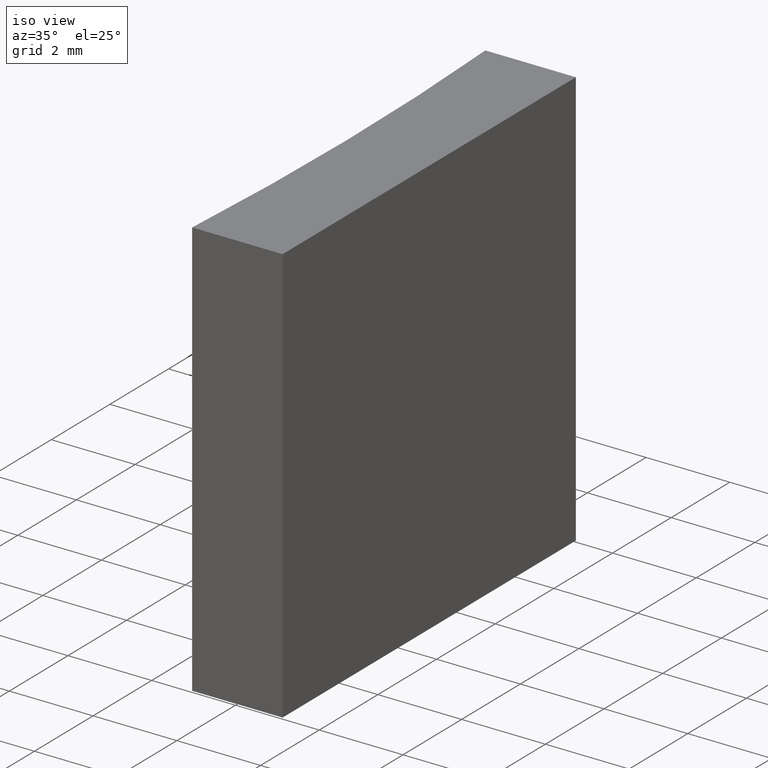
[diagram: clean part render]
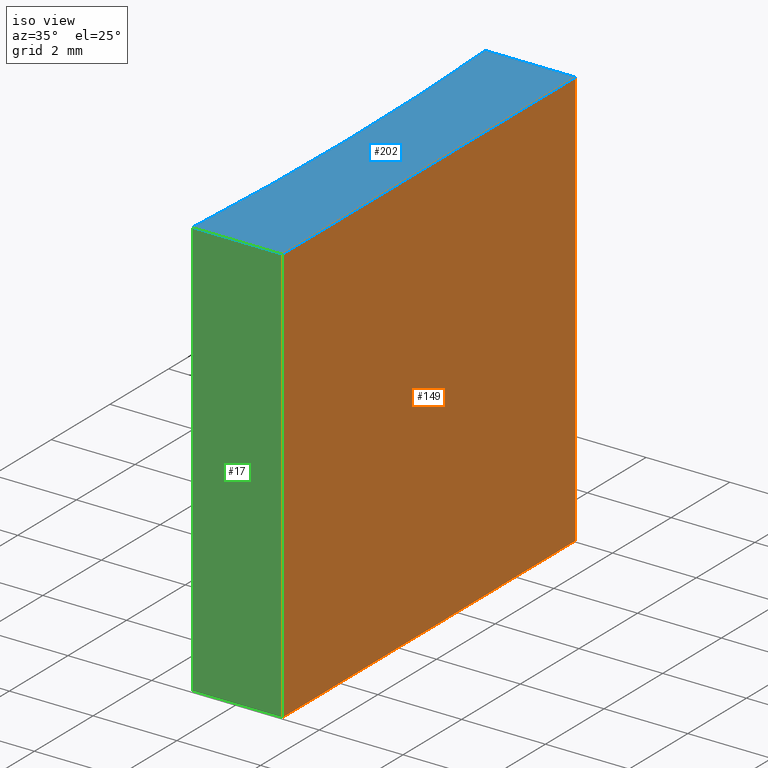
[diagram: same view with three faces highlighted in distinct colors, each labeled with its STEP entity id]
A machine part, iso view with three faces highlighted in distinct colors.
Their STEP definitions:

[orange] entity #149 — the highlighted planar face has unit normal (-1, -0, 0).
#2 = LINE ( 'NONE', #77, #76 ) ;
#6 = CARTESIAN_POINT ( 'NONE',  ( -14.65205432023611998, 23.68283811033197850, 10.00000000000000000 ) ) ;
#7 = DIRECTION ( 'NONE',  ( 1.734723475976806108E-16, -1.000000000000000000, 0.000000000000000000 ) ) ;
#18 = EDGE_LOOP ( 'NONE', ( #91, #205, #227, #172 ) ) ;
#27 = CARTESIAN_POINT ( 'NONE',  ( -14.65205432023611998, 23.68283811033197850, 0.000000000000000000 ) ) ;
#42 = EDGE_CURVE ( 'NONE', #100, #156, #74, .T. ) ;
#43 = DIRECTION ( 'NONE',  ( -0.000000000000000000, -0.000000000000000000, -1.000000000000000000 ) ) ;
#44 = VECTOR ( 'NONE', #137, 1000.000000000000000 ) ;
#55 = VERTEX_POINT ( 'NONE', #175 ) ;
#74 = LINE ( 'NONE', #153, #44 ) ;
#76 = VECTOR ( 'NONE', #138, 1000.000000000000000 ) ;
#77 = CARTESIAN_POINT ( 'NONE',  ( -14.65205432023611998, 23.68283811033197850, 10.00000000000000000 ) ) ;
#84 = EDGE_CURVE ( 'NONE', #112, #55, #2, .T. ) ;
#91 = ORIENTED_EDGE ( 'NONE', *, *, #42, .T. ) ;
#100 = VERTEX_POINT ( 'NONE', #140 ) ;
#112 = VERTEX_POINT ( 'NONE', #210 ) ;
#115 = VECTOR ( 'NONE', #125, 1000.000000000000000 ) ;
#123 = LINE ( 'NONE', #230, #115 ) ;
#125 = DIRECTION ( 'NONE',  ( -0.000000000000000000, -0.000000000000000000, -1.000000000000000000 ) ) ;
#137 = DIRECTION ( 'NONE',  ( -1.734723475976806108E-16, 1.000000000000000000, -0.000000000000000000 ) ) ;
#138 = DIRECTION ( 'NONE',  ( -1.734723475976806108E-16, 1.000000000000000000, -0.000000000000000000 ) ) ;
#140 = CARTESIAN_POINT ( 'NONE',  ( -14.65205432023611820, 13.68283811033197139, 0.000000000000000000 ) ) ;
#149 = ADVANCED_FACE ( 'NONE', ( #180 ), #162, .F. ) ;
#153 = CARTESIAN_POINT ( 'NONE',  ( -14.65205432023611998, 23.68283811033197850, 0.000000000000000000 ) ) ;
#156 = VERTEX_POINT ( 'NONE', #27 ) ;
#162 = PLANE ( 'NONE',  #195 ) ;
#172 = ORIENTED_EDGE ( 'NONE', *, *, #203, .T. ) ;
#174 = EDGE_CURVE ( 'NONE', #55, #156, #215, .T. ) ;
#175 = CARTESIAN_POINT ( 'NONE',  ( -14.65205432023611998, 23.68283811033197850, 10.00000000000000000 ) ) ;
#177 = CARTESIAN_POINT ( 'NONE',  ( -14.65205432023611998, 23.68283811033197850, 10.00000000000000000 ) ) ;
#180 = FACE_OUTER_BOUND ( 'NONE', #18, .T. ) ;
#188 = VECTOR ( 'NONE', #43, 1000.000000000000000 ) ;
#193 = DIRECTION ( 'NONE',  ( -1.000000000000000000, -1.734723475976806108E-16, 0.000000000000000000 ) ) ;
#195 = AXIS2_PLACEMENT_3D ( 'NONE', #6, #193, #7 ) ;
#203 = EDGE_CURVE ( 'NONE', #112, #100, #123, .T. ) ;
#205 = ORIENTED_EDGE ( 'NONE', *, *, #174, .F. ) ;
#210 = CARTESIAN_POINT ( 'NONE',  ( -14.65205432023611820, 13.68283811033197139, 10.00000000000000000 ) ) ;
#215 = LINE ( 'NONE', #177, #188 ) ;
#227 = ORIENTED_EDGE ( 'NONE', *, *, #84, .F. ) ;
#230 = CARTESIAN_POINT ( 'NONE',  ( -14.65205432023611820, 13.68283811033197139, 10.00000000000000000 ) ) ;

[blue] entity #202 — the highlighted planar face has unit normal (0, 0, 1).
#2 = LINE ( 'NONE', #77, #76 ) ;
#3 = EDGE_LOOP ( 'NONE', ( #52, #39, #119, #96 ) ) ;
#23 = FACE_OUTER_BOUND ( 'NONE', #3, .T. ) ;
#24 = CARTESIAN_POINT ( 'NONE',  ( -16.81205432023612190, 23.68283811033197850, 10.00000000000000000 ) ) ;
#25 = VECTOR ( 'NONE', #176, 1000.000000000000000 ) ;
#29 = CARTESIAN_POINT ( 'NONE',  ( -16.81205432023611479, 13.68283811033197139, 10.00000000000000000 ) ) ;
#39 = ORIENTED_EDGE ( 'NONE', *, *, #196, .T. ) ;
#41 = DIRECTION ( 'NONE',  ( -0.000000000000000000, -0.000000000000000000, -1.000000000000000000 ) ) ;
#49 = CIRCLE ( 'NONE', #122, 77.54999999999999716 ) ;
#52 = ORIENTED_EDGE ( 'NONE', *, *, #154, .T. ) ;
#55 = VERTEX_POINT ( 'NONE', #175 ) ;
#59 = CARTESIAN_POINT ( 'NONE',  ( -94.20070012826145955, 18.68283811033194297, 10.00000000000000000 ) ) ;
#61 = LINE ( 'NONE', #192, #219 ) ;
#76 = VECTOR ( 'NONE', #138, 1000.000000000000000 ) ;
#77 = CARTESIAN_POINT ( 'NONE',  ( -14.65205432023611998, 23.68283811033197850, 10.00000000000000000 ) ) ;
#82 = AXIS2_PLACEMENT_3D ( 'NONE', #164, #191, #87 ) ;
#84 = EDGE_CURVE ( 'NONE', #112, #55, #2, .T. ) ;
#86 = PLANE ( 'NONE',  #82 ) ;
#87 = DIRECTION ( 'NONE',  ( 1.000000000000000000, 0.000000000000000000, -0.000000000000000000 ) ) ;
#96 = ORIENTED_EDGE ( 'NONE', *, *, #109, .T. ) ;
#101 = DIRECTION ( 'NONE',  ( 1.000000000000000000, 0.000000000000000000, 0.000000000000000000 ) ) ;
#102 = LINE ( 'NONE', #24, #25 ) ;
#109 = EDGE_CURVE ( 'NONE', #55, #148, #102, .T. ) ;
#112 = VERTEX_POINT ( 'NONE', #210 ) ;
#119 = ORIENTED_EDGE ( 'NONE', *, *, #84, .T. ) ;
#122 = AXIS2_PLACEMENT_3D ( 'NONE', #59, #41, #229 ) ;
#138 = DIRECTION ( 'NONE',  ( -1.734723475976806108E-16, 1.000000000000000000, -0.000000000000000000 ) ) ;
#148 = VERTEX_POINT ( 'NONE', #163 ) ;
#154 = EDGE_CURVE ( 'NONE', #148, #173, #49, .T. ) ;
#163 = CARTESIAN_POINT ( 'NONE',  ( -16.81205432023612190, 23.68283811033197850, 10.00000000000000000 ) ) ;
#164 = CARTESIAN_POINT ( 'NONE',  ( -94.20070012826145955, 18.68283811033194297, 10.00000000000000000 ) ) ;
#173 = VERTEX_POINT ( 'NONE', #29 ) ;
#175 = CARTESIAN_POINT ( 'NONE',  ( -14.65205432023611998, 23.68283811033197850, 10.00000000000000000 ) ) ;
#176 = DIRECTION ( 'NONE',  ( -1.000000000000000000, -0.000000000000000000, -0.000000000000000000 ) ) ;
#191 = DIRECTION ( 'NONE',  ( 0.000000000000000000, 0.000000000000000000, 1.000000000000000000 ) ) ;
#192 = CARTESIAN_POINT ( 'NONE',  ( -16.81205432023611479, 13.68283811033197139, 10.00000000000000000 ) ) ;
#196 = EDGE_CURVE ( 'NONE', #173, #112, #61, .T. ) ;
#202 = ADVANCED_FACE ( 'NONE', ( #23 ), #86, .T. ) ;
#210 = CARTESIAN_POINT ( 'NONE',  ( -14.65205432023611820, 13.68283811033197139, 10.00000000000000000 ) ) ;
#219 = VECTOR ( 'NONE', #101, 1000.000000000000000 ) ;
#229 = DIRECTION ( 'NONE',  ( 1.000000000000000000, 0.000000000000000000, 0.000000000000000000 ) ) ;

[green] entity #17 — the highlighted planar face has unit normal (0, 1, 0).
#1 = DIRECTION ( 'NONE',  ( 0.000000000000000000, 1.000000000000000000, 0.000000000000000000 ) ) ;
#12 = ORIENTED_EDGE ( 'NONE', *, *, #209, .T. ) ;
#14 = AXIS2_PLACEMENT_3D ( 'NONE', #132, #1, #206 ) ;
#17 = ADVANCED_FACE ( 'NONE', ( #190 ), #72, .F. ) ;
#21 = ORIENTED_EDGE ( 'NONE', *, *, #28, .T. ) ;
#28 = EDGE_CURVE ( 'NONE', #173, #170, #228, .T. ) ;
#29 = CARTESIAN_POINT ( 'NONE',  ( -16.81205432023611479, 13.68283811033197139, 10.00000000000000000 ) ) ;
#35 = ORIENTED_EDGE ( 'NONE', *, *, #196, .F. ) ;
#56 = DIRECTION ( 'NONE',  ( -0.000000000000000000, -0.000000000000000000, -1.000000000000000000 ) ) ;
#61 = LINE ( 'NONE', #192, #219 ) ;
#63 = CARTESIAN_POINT ( 'NONE',  ( -16.81205432023611479, 13.68283811033197139, 0.000000000000000000 ) ) ;
#72 = PLANE ( 'NONE',  #14 ) ;
#85 = DIRECTION ( 'NONE',  ( 1.000000000000000000, 0.000000000000000000, 0.000000000000000000 ) ) ;
#100 = VERTEX_POINT ( 'NONE', #140 ) ;
#101 = DIRECTION ( 'NONE',  ( 1.000000000000000000, 0.000000000000000000, 0.000000000000000000 ) ) ;
#112 = VERTEX_POINT ( 'NONE', #210 ) ;
#114 = ORIENTED_EDGE ( 'NONE', *, *, #203, .F. ) ;
#115 = VECTOR ( 'NONE', #125, 1000.000000000000000 ) ;
#120 = CARTESIAN_POINT ( 'NONE',  ( -16.81205432023611479, 13.68283811033197139, 0.000000000000000000 ) ) ;
#123 = LINE ( 'NONE', #230, #115 ) ;
#125 = DIRECTION ( 'NONE',  ( -0.000000000000000000, -0.000000000000000000, -1.000000000000000000 ) ) ;
#132 = CARTESIAN_POINT ( 'NONE',  ( -16.81205432023611479, 13.68283811033197139, 10.00000000000000000 ) ) ;
#140 = CARTESIAN_POINT ( 'NONE',  ( -14.65205432023611820, 13.68283811033197139, 0.000000000000000000 ) ) ;
#151 = CARTESIAN_POINT ( 'NONE',  ( -16.81205432023611479, 13.68283811033197139, 10.00000000000000000 ) ) ;
#155 = VECTOR ( 'NONE', #56, 1000.000000000000000 ) ;
#170 = VERTEX_POINT ( 'NONE', #120 ) ;
#173 = VERTEX_POINT ( 'NONE', #29 ) ;
#190 = FACE_OUTER_BOUND ( 'NONE', #222, .T. ) ;
#192 = CARTESIAN_POINT ( 'NONE',  ( -16.81205432023611479, 13.68283811033197139, 10.00000000000000000 ) ) ;
#196 = EDGE_CURVE ( 'NONE', #173, #112, #61, .T. ) ;
#203 = EDGE_CURVE ( 'NONE', #112, #100, #123, .T. ) ;
#206 = DIRECTION ( 'NONE',  ( 0.000000000000000000, -0.000000000000000000, 1.000000000000000000 ) ) ;
#207 = VECTOR ( 'NONE', #85, 1000.000000000000000 ) ;
#209 = EDGE_CURVE ( 'NONE', #170, #100, #231, .T. ) ;
#210 = CARTESIAN_POINT ( 'NONE',  ( -14.65205432023611820, 13.68283811033197139, 10.00000000000000000 ) ) ;
#219 = VECTOR ( 'NONE', #101, 1000.000000000000000 ) ;
#222 = EDGE_LOOP ( 'NONE', ( #12, #114, #35, #21 ) ) ;
#228 = LINE ( 'NONE', #151, #155 ) ;
#230 = CARTESIAN_POINT ( 'NONE',  ( -14.65205432023611820, 13.68283811033197139, 10.00000000000000000 ) ) ;
#231 = LINE ( 'NONE', #63, #207 ) ;